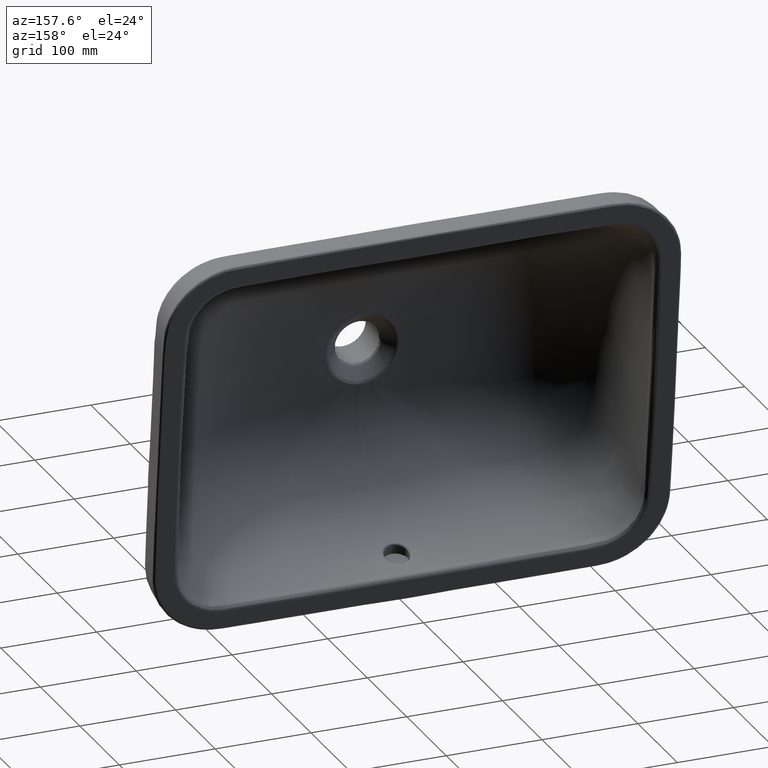
[diagram: clean part render]
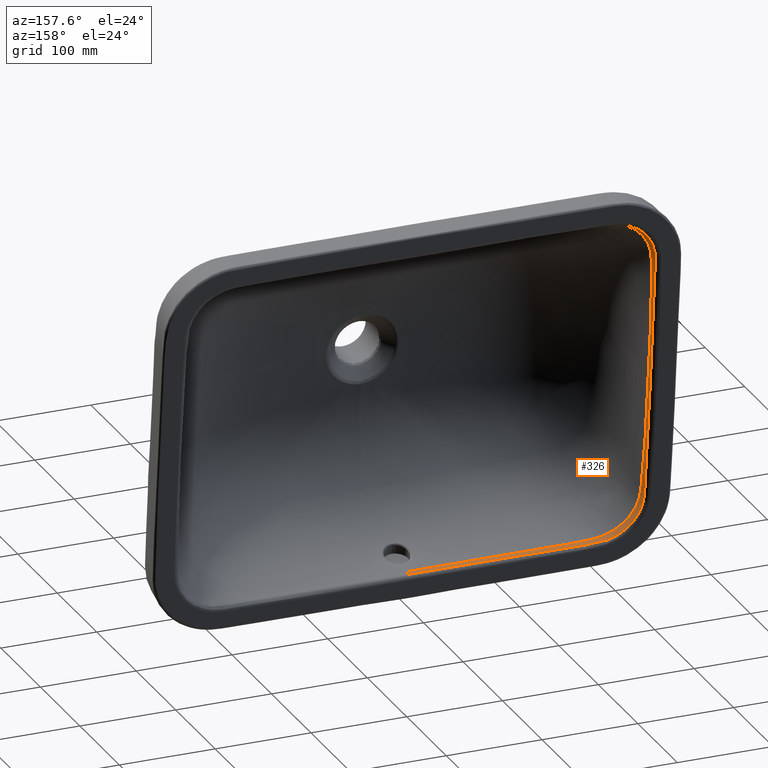
[diagram: same view with one face highlighted and labeled with its STEP entity id]
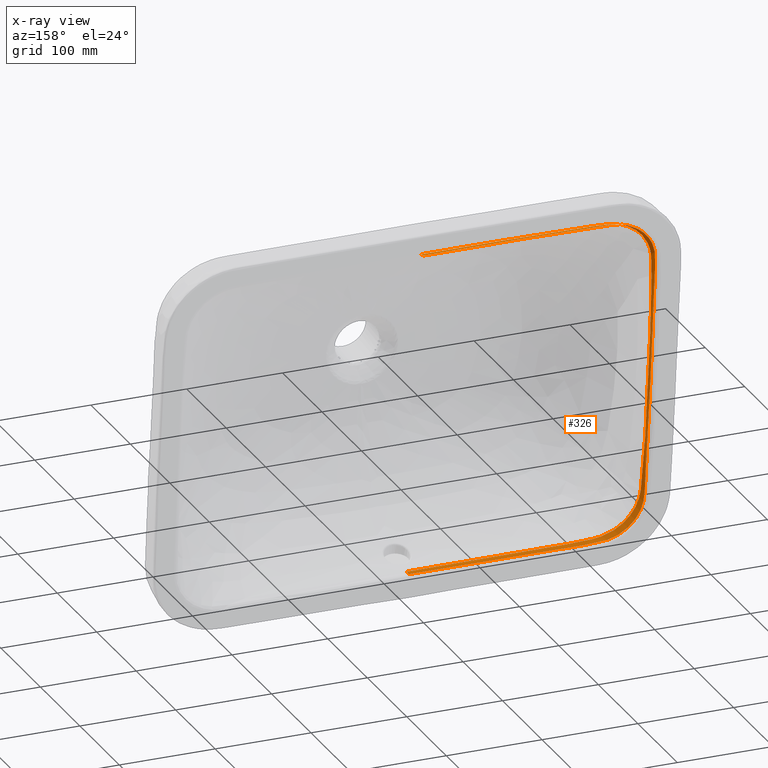
[diagram: x-ray of the same camera — body ghosted, the highlighted face saturated]
A machine part, auxiliary view. The second image highlights one B-rep face of the part: STEP entity #326.
The next image is the same camera in x-ray: the body ghosted, the highlighted face saturated — about 0% of this face is hidden behind the body in this view.
In plain terms, the highlighted face is a freeform B-spline surface patch.
Its self-contained STEP definition (entity closure, byte-faithful):
#326=ADVANCED_FACE('',(#607),#455,.T.);
#455=B_SPLINE_SURFACE_WITH_KNOTS('',3,3,((#45031,#45032,#45033,#45034,#45035,
#45036,#45037),(#45038,#45039,#45040,#45041,#45042,#45043,#45044),(#45045,
#45046,#45047,#45048,#45049,#45050,#45051),(#45052,#45053,#45054,#45055,
#45056,#45057,#45058),(#45059,#45060,#45061,#45062,#45063,#45064,#45065),
(#45066,#45067,#45068,#45069,#45070,#45071,#45072),(#45073,#45074,#45075,
#45076,#45077,#45078,#45079),(#45080,#45081,#45082,#45083,#45084,#45085,
#45086),(#45087,#45088,#45089,#45090,#45091,#45092,#45093),(#45094,#45095,
#45096,#45097,#45098,#45099,#45100),(#45101,#45102,#45103,#45104,#45105,
#45106,#45107),(#45108,#45109,#45110,#45111,#45112,#45113,#45114),(#45115,
#45116,#45117,#45118,#45119,#45120,#45121),(#45122,#45123,#45124,#45125,
#45126,#45127,#45128),(#45129,#45130,#45131,#45132,#45133,#45134,#45135),
(#45136,#45137,#45138,#45139,#45140,#45141,#45142),(#45143,#45144,#45145,
#45146,#45147,#45148,#45149),(#45150,#45151,#45152,#45153,#45154,#45155,
#45156),(#45157,#45158,#45159,#45160,#45161,#45162,#45163),(#45164,#45165,
#45166,#45167,#45168,#45169,#45170),(#45171,#45172,#45173,#45174,#45175,
#45176,#45177),(#45178,#45179,#45180,#45181,#45182,#45183,#45184),(#45185,
#45186,#45187,#45188,#45189,#45190,#45191),(#45192,#45193,#45194,#45195,
#45196,#45197,#45198),(#45199,#45200,#45201,#45202,#45203,#45204,#45205),
(#45206,#45207,#45208,#45209,#45210,#45211,#45212),(#45213,#45214,#45215,
#45216,#45217,#45218,#45219),(#45220,#45221,#45222,#45223,#45224,#45225,
#45226),(#45227,#45228,#45229,#45230,#45231,#45232,#45233),(#45234,#45235,
#45236,#45237,#45238,#45239,#45240),(#45241,#45242,#45243,#45244,#45245,
#45246,#45247),(#45248,#45249,#45250,#45251,#45252,#45253,#45254),(#45255,
#45256,#45257,#45258,#45259,#45260,#45261),(#45262,#45263,#45264,#45265,
#45266,#45267,#45268),(#45269,#45270,#45271,#45272,#45273,#45274,#45275),
(#45276,#45277,#45278,#45279,#45280,#45281,#45282),(#45283,#45284,#45285,
#45286,#45287,#45288,#45289),(#45290,#45291,#45292,#45293,#45294,#45295,
#45296),(#45297,#45298,#45299,#45300,#45301,#45302,#45303),(#45304,#45305,
#45306,#45307,#45308,#45309,#45310),(#45311,#45312,#45313,#45314,#45315,
#45316,#45317),(#45318,#45319,#45320,#45321,#45322,#45323,#45324),(#45325,
#45326,#45327,#45328,#45329,#45330,#45331),(#45332,#45333,#45334,#45335,
#45336,#45337,#45338),(#45339,#45340,#45341,#45342,#45343,#45344,#45345),
(#45346,#45347,#45348,#45349,#45350,#45351,#45352),(#45353,#45354,#45355,
#45356,#45357,#45358,#45359),(#45360,#45361,#45362,#45363,#45364,#45365,
#45366),(#45367,#45368,#45369,#45370,#45371,#45372,#45373),(#45374,#45375,
#45376,#45377,#45378,#45379,#45380),(#45381,#45382,#45383,#45384,#45385,
#45386,#45387),(#45388,#45389,#45390,#45391,#45392,#45393,#45394),(#45395,
#45396,#45397,#45398,#45399,#45400,#45401),(#45402,#45403,#45404,#45405,
#45406,#45407,#45408),(#45409,#45410,#45411,#45412,#45413,#45414,#45415),
(#45416,#45417,#45418,#45419,#45420,#45421,#45422),(#45423,#45424,#45425,
#45426,#45427,#45428,#45429),(#45430,#45431,#45432,#45433,#45434,#45435,
#45436),(#45437,#45438,#45439,#45440,#45441,#45442,#45443)),
 .UNSPECIFIED.,.F.,.F.,.F.,(4,1,1,1,1,1,1,1,1,1,1,1,1,1,1,1,1,1,1,1,1,1,
1,1,1,1,1,1,1,1,1,1,1,1,1,1,1,1,1,1,1,1,1,1,1,1,1,1,1,1,1,1,1,3,4),(4,3,
4),(0.,0.0155315619939548,0.0310633723509959,0.0621269930650784,0.124254234493242,
0.155317855207324,0.186381475921406,0.217445096635488,0.232976906992529,
0.240742812171049,0.24850871734957,0.25627462252809,0.264040527706611,0.279572338063652,
0.295104148420692,0.310635958777733,0.318401863956254,0.326167769134774,
0.333933674313295,0.341699579491815,0.357231389848856,0.372763200205897,
0.403826820919979,0.434890441634061,0.465954062348143,0.481485872705184,
0.489251777883704,0.497017683062225,0.504783588240745,0.512549493419266,
0.528081303776306,0.559144924490388,0.59020854520447,0.621272165918552,
0.652335786632634,0.667867596989675,0.683399407346716,0.698931217703757,
0.714463028060798,0.729994838417839,0.737760743596359,0.74552664877488,
0.74940960136414,0.7532925539534,0.761058459131921,0.776590269488961,0.807653890203043,
0.838717510917125,0.869781131631207,0.885312941988248,0.900844752345289,
0.931908373059371,0.962971993773453,0.994035614487535,1.),(0.,0.00990099009900991,
1.),.UNSPECIFIED.);
#607=FACE_OUTER_BOUND('',#778,.T.);
#778=EDGE_LOOP('',(#1500,#1501,#1502,#1503));
#1500=ORIENTED_EDGE('',*,*,#1868,.F.);
#1501=ORIENTED_EDGE('',*,*,#2225,.T.);
#1502=ORIENTED_EDGE('',*,*,#2226,.T.);
#1503=ORIENTED_EDGE('',*,*,#2227,.T.);
#1620=VERTEX_POINT('',#2741);
#1624=VERTEX_POINT('',#2815);
#1840=VERTEX_POINT('',#44792);
#1841=VERTEX_POINT('',#45026);
#1868=EDGE_CURVE('',#1620,#1624,#2275,.T.);
#2225=EDGE_CURVE('',#1620,#1840,#2622,.T.);
#2226=EDGE_CURVE('',#1840,#1841,#2623,.T.);
#2227=EDGE_CURVE('',#1841,#1624,#2624,.T.);
#2275=B_SPLINE_CURVE_WITH_KNOTS('',3,(#4088,#4089,#4090,#4091,#4092,#4093,
#4094,#4095,#4096,#4097,#4098,#4099,#4100,#4101,#4102,#4103,#4104,#4105,
#4106,#4107,#4108,#4109,#4110,#4111,#4112,#4113,#4114,#4115,#4116,#4117,
#4118,#4119,#4120,#4121,#4122,#4123,#4124,#4125,#4126,#4127,#4128,#4129,
#4130,#4131,#4132,#4133,#4134,#4135,#4136,#4137,#4138,#4139,#4140,#4141,
#4142,#4143,#4144,#4145,#4146,#4147,#4148,#4149),.UNSPECIFIED.,.F.,.F.,
(4,2,2,2,2,2,2,2,2,2,2,2,2,2,2,2,2,2,2,2,2,2,2,2,2,2,2,2,2,2,4),(0.,0.125,
0.187500000000001,0.218750000000001,0.234375000000001,0.242187500000001,
0.250000000000001,0.265625000000001,0.281250000000001,0.312500000000001,
0.328125000000001,0.343750000000001,0.375000000000001,0.437500000000001,
0.468750000000001,0.500000000000001,0.562500000000001,0.625000000000001,
0.656250000000001,0.671875000000001,0.687500000000001,0.718750000000001,
0.734375000000001,0.742187500000001,0.750000000000001,0.757812500000002,
0.765625000000002,0.781250000000001,0.812500000000001,0.875000000000001,
1.),.UNSPECIFIED.);
#2622=B_SPLINE_CURVE_WITH_KNOTS('',3,(#44788,#44789,#44790,#44791),
 .UNSPECIFIED.,.F.,.F.,(4,4),(0.,1.),.UNSPECIFIED.);
#2623=B_SPLINE_CURVE_WITH_KNOTS('',3,(#44793,#44794,#44795,#44796,#44797,
#44798,#44799,#44800,#44801,#44802,#44803,#44804,#44805,#44806,#44807,#44808,
#44809,#44810,#44811,#44812,#44813,#44814,#44815,#44816,#44817,#44818,#44819,
#44820,#44821,#44822,#44823,#44824,#44825,#44826,#44827,#44828,#44829,#44830,
#44831,#44832,#44833,#44834,#44835,#44836,#44837,#44838,#44839,#44840,#44841,
#44842,#44843,#44844,#44845,#44846,#44847,#44848,#44849,#44850,#44851,#44852,
#44853,#44854,#44855,#44856,#44857,#44858,#44859,#44860,#44861,#44862,#44863,
#44864,#44865,#44866,#44867,#44868,#44869,#44870,#44871,#44872,#44873,#44874,
#44875,#44876,#44877,#44878,#44879,#44880,#44881,#44882,#44883,#44884,#44885,
#44886,#44887,#44888,#44889,#44890,#44891,#44892,#44893,#44894,#44895,#44896,
#44897,#44898,#44899,#44900,#44901,#44902,#44903,#44904,#44905,#44906,#44907,
#44908,#44909,#44910,#44911,#44912,#44913,#44914,#44915,#44916,#44917,#44918,
#44919,#44920,#44921,#44922,#44923,#44924,#44925,#44926,#44927,#44928,#44929,
#44930,#44931,#44932,#44933,#44934,#44935,#44936,#44937,#44938,#44939,#44940,
#44941,#44942,#44943,#44944,#44945,#44946,#44947,#44948,#44949,#44950,#44951,
#44952,#44953,#44954,#44955,#44956,#44957,#44958,#44959,#44960,#44961,#44962,
#44963,#44964,#44965,#44966,#44967,#44968,#44969,#44970,#44971,#44972,#44973,
#44974,#44975,#44976,#44977,#44978,#44979,#44980,#44981,#44982,#44983,#44984,
#44985,#44986,#44987,#44988,#44989,#44990,#44991,#44992,#44993,#44994,#44995,
#44996,#44997,#44998,#44999,#45000,#45001,#45002,#45003,#45004,#45005,#45006,
#45007,#45008,#45009,#45010,#45011,#45012,#45013,#45014,#45015,#45016,#45017,
#45018,#45019,#45020,#45021,#45022,#45023,#45024,#45025),.UNSPECIFIED.,
 .F.,.F.,(4,2,2,2,2,1,1,1,2,2,2,2,2,1,1,1,1,1,2,2,2,2,2,2,2,1,1,2,2,2,2,
2,2,2,2,2,2,2,2,2,1,1,2,2,2,2,2,2,2,2,2,2,2,1,1,1,2,2,2,2,2,1,1,2,2,2,2,
2,2,1,2,2,2,2,2,1,2,2,2,2,2,1,1,1,2,2,2,2,2,1,1,2,2,2,2,2,2,2,2,2,2,2,2,
2,2,2,2,1,1,1,2,2,2,2,2,2,1,2,2,2,2,2,1,2,2,2,2,1,1,2,2,4),(0.,0.0624999999999891,
0.0937499999999836,0.109374999999981,0.117187499999979,0.121093749999979,
0.123046874999978,0.124023437499978,0.124511718749978,0.124999999999978,
0.156249999999971,0.171874999999968,0.179687499999966,0.183593749999966,
0.185546874999965,0.186523437499965,0.187011718749965,0.187255859374965,
0.187377929687465,0.187499999999965,0.218749999999962,0.23437499999996,
0.242187499999959,0.246093749999959,0.248046874999959,0.249023437499959,
0.249511718749958,0.249755859374959,0.249999999999959,0.26562499999996,
0.26953124999996,0.273437499999961,0.281249999999962,0.296874999999963,
0.304687499999964,0.308593749999965,0.312499999999965,0.320312499999966,
0.324218749999966,0.326171874999967,0.327148437499967,0.327636718749967,
0.327880859374967,0.328124999999967,0.335937499999969,0.339843749999969,
0.34179687499997,0.34277343749997,0.34326171874997,0.34374999999997,0.359374999999973,
0.367187499999975,0.371093749999976,0.373046874999976,0.374023437499976,
0.374511718749976,0.374755859374977,0.374999999999977,0.406249999999983,
0.421874999999987,0.429687499999988,0.433593749999989,0.43554687499999,
0.43652343749999,0.43749999999999,0.468749999999997,0.484375,0.492187500000002,
0.496093750000003,0.498046875000003,0.499023437500003,0.500000000000004,
0.53125000000001,0.546875000000014,0.554687500000015,0.558593750000016,
0.560546875000017,0.562500000000017,0.593750000000024,0.609375000000028,
0.61718750000003,0.621093750000031,0.623046875000031,0.624023437500031,
0.624511718750031,0.625000000000032,0.640625000000031,0.648437500000031,
0.652343750000031,0.654296875000031,0.655273437500031,0.655761718750031,
0.656250000000031,0.664062500000033,0.667968750000033,0.669921875000034,
0.670898437500034,0.671386718750034,0.671875000000034,0.679687500000034,
0.683593750000035,0.685546875000035,0.687500000000035,0.718750000000039,
0.73437500000004,0.742187500000041,0.746093750000042,0.748046875000042,
0.749023437500042,0.749511718750042,0.749755859375043,0.750000000000043,
0.78125000000004,0.789062500000039,0.790039062500039,0.791015625000039,
0.792968750000038,0.796875000000038,0.812500000000035,0.820312500000033,
0.821289062500033,0.822265625000033,0.824218750000033,0.828125000000032,
0.843750000000029,0.859375000000026,0.867187500000024,0.871093750000024,
0.873046875000023,0.874023437500023,0.875000000000023,1.),.UNSPECIFIED.);
#2624=B_SPLINE_CURVE_WITH_KNOTS('',3,(#45027,#45028,#45029,#45030),
 .UNSPECIFIED.,.F.,.F.,(4,4),(0.,1.),.UNSPECIFIED.);
#2741=CARTESIAN_POINT('',(1.77820747920629E-013,58.0859662182647,0.225017652117687));
#2815=CARTESIAN_POINT('',(1.79591547420632E-013,-294.245062156742,0.225017652117682));
#4088=CARTESIAN_POINT('',(1.75354524806639E-013,58.0859662182647,0.225017652117691));
#4089=CARTESIAN_POINT('',(-22.1644432683728,58.0829865959195,0.225017652117689));
#4090=CARTESIAN_POINT('',(-49.6888967975123,58.1258777044063,0.223726325611701));
#4091=CARTESIAN_POINT('',(-99.0214510549962,58.1013066178581,0.223585601234728));
#4092=CARTESIAN_POINT('',(-116.806750074482,58.0857687021332,0.223802474257948));
#4093=CARTESIAN_POINT('',(-145.49767708691,57.8645191998007,0.22433428379329));
#4094=CARTESIAN_POINT('',(-155.396807442467,57.7428899555295,0.224539583760086));
#4095=CARTESIAN_POINT('',(-170.744585070336,57.3997340585556,0.224795669918567));
#4096=CARTESIAN_POINT('',(-175.943742382463,57.2631832733726,0.224871830229089));
#4097=CARTESIAN_POINT('',(-183.865752689418,56.985956379762,0.224955067848052));
#4098=CARTESIAN_POINT('',(-186.527136572734,56.886121504481,0.224977606270877));
#4099=CARTESIAN_POINT('',(-191.889344066113,56.6147880799374,0.225008898194135));
#4100=CARTESIAN_POINT('',(-194.560611499759,56.4580101507696,0.225017652117678));
#4101=CARTESIAN_POINT('',(-202.775963606058,55.4501264072935,0.225017652117687));
#4102=CARTESIAN_POINT('',(-208.070560444453,53.9961035021957,0.225054915577095));
#4103=CARTESIAN_POINT('',(-217.827931640874,49.6244345186982,0.225173718191573));
#4104=CARTESIAN_POINT('',(-222.291060942797,46.728326130233,0.225255272369529));
#4105=CARTESIAN_POINT('',(-233.845744725352,36.3747033336576,0.225529610769605));
#4106=CARTESIAN_POINT('',(-239.032679908417,27.2391597596175,0.225749684979913));
#4107=CARTESIAN_POINT('',(-241.984330435342,13.0899648357478,0.226034849748722));
#4108=CARTESIAN_POINT('',(-242.229190857298,8.33213473644926,0.226123031488806));
#4109=CARTESIAN_POINT('',(-242.770745766413,-0.958687213556945,0.226275689740588));
#4110=CARTESIAN_POINT('',(-242.985236163534,-5.51426685773238,0.226340179624599));
#4111=CARTESIAN_POINT('',(-243.543337900276,-18.9284366110446,0.226489202575737));
#4112=CARTESIAN_POINT('',(-243.781163621662,-27.5263094568458,0.226527713207115));
#4113=CARTESIAN_POINT('',(-244.275890299911,-52.2685206837737,0.226452274566856));
#4114=CARTESIAN_POINT('',(-244.358080177407,-67.3656527115066,0.226131511252349));
#4115=CARTESIAN_POINT('',(-244.465035625201,-87.9045811136016,0.225589544265807));
#4116=CARTESIAN_POINT('',(-244.481293189346,-94.4002308239726,0.225403261157139));
#4117=CARTESIAN_POINT('',(-244.529186706065,-106.689658915169,0.22511716541031));
#4118=CARTESIAN_POINT('',(-244.57903497194,-112.493100227252,0.225017652117664));
#4119=CARTESIAN_POINT('',(-244.581099938067,-128.792425151895,0.22501765211772));
#4120=CARTESIAN_POINT('',(-244.529770267184,-141.064184137365,0.225407665354512));
#4121=CARTESIAN_POINT('',(-244.430274719438,-168.423167059001,0.226128217192601));
#4122=CARTESIAN_POINT('',(-244.39042059337,-183.513981583662,0.226448165637797));
#4123=CARTESIAN_POINT('',(-243.889134874939,-208.245926576044,0.226523494316907));
#4124=CARTESIAN_POINT('',(-243.632559651247,-216.835460994584,0.226485111117194));
#4125=CARTESIAN_POINT('',(-243.019561322114,-230.241990321657,0.226336490212909));
#4126=CARTESIAN_POINT('',(-242.779998016859,-234.799163697549,0.226272171436215));
#4127=CARTESIAN_POINT('',(-242.230189424514,-244.09907434325,0.226119920407007));
#4128=CARTESIAN_POINT('',(-242.015037522001,-248.860946449427,0.226031974896245));
#4129=CARTESIAN_POINT('',(-239.196951783121,-263.024882752726,0.225747582370425));
#4130=CARTESIAN_POINT('',(-234.170285566968,-272.253841001986,0.225528122048544));
#4131=CARTESIAN_POINT('',(-222.782585507212,-282.802759176439,0.225254574787537));
#4132=CARTESIAN_POINT('',(-218.358883567262,-285.769409216313,0.225173259066531));
#4133=CARTESIAN_POINT('',(-211.066961038487,-289.123475632303,0.225084418867528));
#4134=CARTESIAN_POINT('',(-208.529743613105,-290.061438700017,0.225060370234856));
#4135=CARTESIAN_POINT('',(-203.299186205791,-291.541540455941,0.225026987161644));
#4136=CARTESIAN_POINT('',(-200.57504232275,-292.083209741402,0.225017652117628));
#4137=CARTESIAN_POINT('',(-195.15314375411,-292.761968222162,0.225017652117714));
#4138=CARTESIAN_POINT('',(-192.442701319353,-292.918340242386,0.225008893260851));
#4139=CARTESIAN_POINT('',(-187.067638194525,-293.173434015528,0.224977584456667));
#4140=CARTESIAN_POINT('',(-184.399658788081,-293.260861282947,0.224955033956129));
#4141=CARTESIAN_POINT('',(-176.458287812915,-293.502678935038,0.224871751899569));
#4142=CARTESIAN_POINT('',(-171.24634316492,-293.615496073003,0.22479555118102));
#4143=CARTESIAN_POINT('',(-155.85993213216,-293.90565901341,0.224539331298678));
#4144=CARTESIAN_POINT('',(-145.935286213654,-294.017771684657,0.224333928317324));
#4145=CARTESIAN_POINT('',(-117.169427695032,-294.259704089661,0.223801864412912));
#4146=CARTESIAN_POINT('',(-99.3337875047315,-294.282214493358,0.223584888929627));
#4147=CARTESIAN_POINT('',(-49.8558164037673,-294.294743088123,0.223725543895533));
#4148=CARTESIAN_POINT('',(-22.2416039583019,-294.245068179872,0.225017652117644));
#4149=CARTESIAN_POINT('',(2.87121122144521E-013,-294.245062156742,0.225017652117703));
#44788=CARTESIAN_POINT('',(1.7531897692661E-013,58.0859662182647,0.225017652117682));
#44789=CARTESIAN_POINT('',(2.67358545442097E-006,58.311130253061,1.593758445416));
#44790=CARTESIAN_POINT('',(5.56454324182418E-006,58.5257412189763,2.96445389949261));
#44791=CARTESIAN_POINT('',(8.68233119600239E-006,58.7301834006853,4.33680663543269));
#44792=CARTESIAN_POINT('',(2.3190543035004E-015,58.7302715060645,4.33679351059625));
#44793=CARTESIAN_POINT('',(-5.61388518003812E-012,58.7301834001,4.33680663553828));
#44794=CARTESIAN_POINT('',(-12.5780997715322,58.7294664849681,4.33783861461971));
#44795=CARTESIAN_POINT('',(-27.1693967170776,58.7552172443759,4.35859679571018));
#44796=CARTESIAN_POINT('',(-52.0861008118151,58.8330506698709,4.41982368903098));
#44797=CARTESIAN_POINT('',(-60.8966983557453,58.8655846146573,4.44524419639386));
#44798=CARTESIAN_POINT('',(-74.8718546049584,58.9165092361294,4.49090660698956));
#44799=CARTESIAN_POINT('',(-79.656786208687,58.9337554008962,4.50738225673015));
#44800=CARTESIAN_POINT('',(-87.0242476953118,58.9583673205033,4.53397547264561));
#44801=CARTESIAN_POINT('',(-89.5117457621973,58.9663568179129,4.54315313569516));
#44802=CARTESIAN_POINT('',(-93.2905418600071,58.9777641875071,4.55738889653791));
#44803=CARTESIAN_POINT('',(-95.1918271796985,58.9833231391703,4.56462409025882));
#44804=CARTESIAN_POINT('',(-97.4308034773024,58.9894938902384,4.57327027707115));
#44805=CARTESIAN_POINT('',(-98.5554950869084,58.992492484721,4.57764462832627));
#44806=CARTESIAN_POINT('',(-99.0386209049617,58.993758121133,4.57953033147873));
#44807=CARTESIAN_POINT('',(-99.3609526011936,58.994597451929,4.58078990687676));
#44808=CARTESIAN_POINT('',(-99.490807981024,58.9949340493118,4.58129779191411));
#44809=CARTESIAN_POINT('',(-112.025931123231,59.0271768629257,4.63039555191837));
#44810=CARTESIAN_POINT('',(-122.352453856189,59.0365911496374,4.6732647674844));
#44811=CARTESIAN_POINT('',(-134.814062147563,59.0250346201209,4.72907067149777));
#44812=CARTESIAN_POINT('',(-138.463223276866,59.0167446418667,4.74625983761562));
#44813=CARTESIAN_POINT('',(-143.179439592607,59.0008896145441,4.76991105471792));
#44814=CARTESIAN_POINT('',(-144.625259236023,58.995066563613,4.77743948218273));
#44815=CARTESIAN_POINT('',(-146.604565940843,58.9860954055134,4.78819829191344));
#44816=CARTESIAN_POINT('',(-147.546863730092,58.9815514375084,4.79344424573677));
#44817=CARTESIAN_POINT('',(-148.563330524368,58.9762753526493,4.79933086046956));
#44818=CARTESIAN_POINT('',(-149.050842801421,58.9736592756849,4.80221574000883));
#44819=CARTESIAN_POINT('',(-149.289418541536,58.9723586593891,4.80364357144702));
#44820=CARTESIAN_POINT('',(-149.407411297469,58.9717104464889,4.80435383492392));
#44821=CARTESIAN_POINT('',(-149.457702095441,58.9714331156133,4.80465745091712));
#44822=CARTESIAN_POINT('',(-149.491167621468,58.9712483370148,4.80485968765751));
#44823=CARTESIAN_POINT('',(-149.475393459885,58.9713357662454,4.80476407441244));
#44824=CARTESIAN_POINT('',(-162.10621835761,58.9014206220108,4.88124447361432));
#44825=CARTESIAN_POINT('',(-172.550412705305,58.7785012736082,4.97464838466029));
#44826=CARTESIAN_POINT('',(-185.008815729263,58.589377562659,5.14039416586221));
#44827=CARTESIAN_POINT('',(-188.626960110398,58.5285335289062,5.19992017042422));
#44828=CARTESIAN_POINT('',(-193.251209390851,58.3974946058451,5.29562968721679));
#44829=CARTESIAN_POINT('',(-194.659078281075,58.3473561703688,5.32860309638706));
#44830=CARTESIAN_POINT('',(-196.568057655053,58.2503021040996,5.37967029802223));
#44831=CARTESIAN_POINT('',(-197.170569836335,58.2143471242313,5.39696055378747));
#44832=CARTESIAN_POINT('',(-198.023520773607,58.1553784296687,5.42329799763554));
#44833=CARTESIAN_POINT('',(-198.299370332176,58.1348984487271,5.43214415601727));
#44834=CARTESIAN_POINT('',(-198.70044812142,58.1031091884661,5.44551394738662));
#44835=CARTESIAN_POINT('',(-198.897813030192,58.086948323481,5.45222398155579));
#44836=CARTESIAN_POINT('',(-199.122520079702,58.0676748887067,5.46009635581308));
#44837=CARTESIAN_POINT('',(-199.217633731598,58.0593306435321,5.46347966024979));
#44838=CARTESIAN_POINT('',(-199.280778568973,58.0537497371304,5.46573729214893));
#44839=CARTESIAN_POINT('',(-199.266164424104,58.0550811254428,5.46520358113535));
#44840=CARTESIAN_POINT('',(-204.294733891528,57.6040404373171,5.64684519572549));
#44841=CARTESIAN_POINT('',(-208.550716776955,56.5818538314067,5.78149772318628));
#44842=CARTESIAN_POINT('',(-212.943900067792,55.0483534237161,5.89471140720889));
#44843=CARTESIAN_POINT('',(-213.777424907012,54.730530385702,5.91459889522331));
#44844=CARTESIAN_POINT('',(-215.355937803478,54.0839513989714,5.94886623992991));
#44845=CARTESIAN_POINT('',(-216.365211810289,53.6411187909961,5.96880721137542));
#44846=CARTESIAN_POINT('',(-219.184816043191,52.2848170664679,6.02057220531707));
#44847=CARTESIAN_POINT('',(-221.002880485493,51.2656410891756,6.04829303549747));
#44848=CARTESIAN_POINT('',(-226.226189679065,47.8764106470636,6.11110669140224));
#44849=CARTESIAN_POINT('',(-229.507010940362,45.0797703713367,6.12675492958743));
#44850=CARTESIAN_POINT('',(-233.667376095148,40.4174755320028,6.10878115214492));
#44851=CARTESIAN_POINT('',(-234.936904919609,38.7823307928753,6.09593823768851));
#44852=CARTESIAN_POINT('',(-236.657562791853,36.236052086327,6.06640583899093));
#44853=CARTESIAN_POINT('',(-237.200530167145,35.3716777247028,6.05485036348935));
#44854=CARTESIAN_POINT('',(-238.224237341129,33.6160974559347,6.02831823948935));
#44855=CARTESIAN_POINT('',(-238.683481286843,32.7680828849855,6.01414015104286));
#44856=CARTESIAN_POINT('',(-240.095488411951,29.9309647588238,5.96168496274481));
#44857=CARTESIAN_POINT('',(-240.897045645699,27.9908316875755,5.91759772820873));
#44858=CARTESIAN_POINT('',(-241.875830949777,25.0346682201049,5.83780303644313));
#44859=CARTESIAN_POINT('',(-242.164670983599,24.0414521027852,5.80892748902618));
#44860=CARTESIAN_POINT('',(-242.54329508053,22.5450426207431,5.7621995736305));
#44861=CARTESIAN_POINT('',(-242.660405153476,22.0451440380978,5.74605450208455));
#44862=CARTESIAN_POINT('',(-242.822630169572,21.2942800504391,5.720983411306));
#44863=CARTESIAN_POINT('',(-242.900382663949,20.9185937078155,5.70823449498341));
#44864=CARTESIAN_POINT('',(-242.985259217194,20.4799816381194,5.69298739575877));
#44865=CARTESIAN_POINT('',(-243.020389453622,20.2919524382791,5.68637292196418));
#44866=CARTESIAN_POINT('',(-243.043533389419,20.1665895124587,5.68194549480788));
#44867=CARTESIAN_POINT('',(-243.048343894691,20.1406613693091,5.68103131387448));
#44868=CARTESIAN_POINT('',(-243.639683036591,16.8588380370229,5.56421418638024));
#44869=CARTESIAN_POINT('',(-243.803985021379,14.20175474675,5.47390951721735));
#44870=CARTESIAN_POINT('',(-243.963191240504,11.0886949897953,5.37284499005684));
#44871=CARTESIAN_POINT('',(-243.994951918218,10.1948654819085,5.34488932860751));
#44872=CARTESIAN_POINT('',(-244.03166197334,9.07207277287014,5.31154978325205));
#44873=CARTESIAN_POINT('',(-244.041852090325,8.73410569968717,5.30186894764044));
#44874=CARTESIAN_POINT('',(-244.055179583324,8.28168633637411,5.28949579545305));
#44875=CARTESIAN_POINT('',(-244.059287956996,8.1399674971088,5.28572942949243));
#44876=CARTESIAN_POINT('',(-244.065030139744,7.94102470854285,5.28061686626793));
#44877=CARTESIAN_POINT('',(-244.066873799645,7.87698298702685,5.2790021762196));
#44878=CARTESIAN_POINT('',(-244.070430174057,7.75344491811375,5.27595178547926));
#44879=CARTESIAN_POINT('',(-244.070915903155,7.73647159518789,5.27551645617932));
#44880=CARTESIAN_POINT('',(-244.165894100827,4.44483239074543,5.19807931180773));
#44881=CARTESIAN_POINT('',(-244.263201627399,0.768082242652139,5.12589666004439));
#44882=CARTESIAN_POINT('',(-244.413831156873,-5.47747486875017,5.02197235995719));
#44883=CARTESIAN_POINT('',(-244.465110058919,-7.6814011449205,4.98805569089945));
#44884=CARTESIAN_POINT('',(-244.541555812986,-11.1706680012462,4.93826443246195));
#44885=CARTESIAN_POINT('',(-244.566913585215,-12.3643003307684,4.92184795616131));
#44886=CARTESIAN_POINT('',(-244.604331774125,-14.2005346137972,4.89749359356682));
#44887=CARTESIAN_POINT('',(-244.622885454341,-15.1300980288762,4.88538399872863));
#44888=CARTESIAN_POINT('',(-244.644156281482,-16.2346112822393,4.87137427484669));
#44889=CARTESIAN_POINT('',(-244.654684358879,-16.7918723530273,4.86439892838494));
#44890=CARTESIAN_POINT('',(-244.659171923036,-17.0317707735253,4.86141581689574));
#44891=CARTESIAN_POINT('',(-244.662158029954,-17.1919413157427,4.8594284807195));
#44892=CARTESIAN_POINT('',(-244.664201024099,-17.3019958769794,4.85806676603456));
#44893=CARTESIAN_POINT('',(-244.784767808721,-23.8130601029157,4.77763341076843));
#44894=CARTESIAN_POINT('',(-244.887362242298,-31.2090606104871,4.7048459024935));
#44895=CARTESIAN_POINT('',(-244.993713879609,-43.7067062018774,4.60604109146528));
#44896=CARTESIAN_POINT('',(-245.021686432184,-48.1065494729769,4.57483449778639));
#44897=CARTESIAN_POINT('',(-245.053363432311,-55.0572798723986,4.53058642807476));
#44898=CARTESIAN_POINT('',(-245.062234878491,-57.4326829945708,4.51626395676913));
#44899=CARTESIAN_POINT('',(-245.073457386441,-61.0835225943255,4.49541592813512));
#44900=CARTESIAN_POINT('',(-245.078551493649,-62.930876055501,4.48515082453487));
#44901=CARTESIAN_POINT('',(-245.083732575402,-65.1245038730539,4.4734518506209));
#44902=CARTESIAN_POINT('',(-245.085808166483,-66.0728545699547,4.46849723191367));
#44903=CARTESIAN_POINT('',(-245.087161840317,-66.7069160027169,4.46520730024444));
#44904=CARTESIAN_POINT('',(-245.087718368269,-66.9730498282388,4.46383406050561));
#44905=CARTESIAN_POINT('',(-245.112572668274,-79.2051282893547,4.40123379151048));
#44906=CARTESIAN_POINT('',(-245.109916924224,-89.3003218897822,4.35494353080033));
#44907=CARTESIAN_POINT('',(-245.110822193168,-101.798712360925,4.30741995000524));
#44908=CARTESIAN_POINT('',(-245.117538469007,-105.523996809704,4.29523227728066));
#44909=CARTESIAN_POINT('',(-245.129892524869,-110.451084331814,4.28247262683758));
#44910=CARTESIAN_POINT('',(-245.1326537296,-111.983326769323,4.27913970679928));
#44911=CARTESIAN_POINT('',(-245.134038204966,-114.11653656746,4.27552562079942));
#44912=CARTESIAN_POINT('',(-245.134186272397,-114.800078457865,4.27455180414707));
#44913=CARTESIAN_POINT('',(-245.134214878118,-115.784096939163,4.27343796418375));
#44914=CARTESIAN_POINT('',(-245.134179249969,-116.26578262345,4.27296776499867));
#44915=CARTESIAN_POINT('',(-245.134107615527,-116.731982804436,4.27262774891801));
#44916=CARTESIAN_POINT('',(-245.134055369331,-117.039341698981,4.27243001210743));
#44917=CARTESIAN_POINT('',(-245.134034841675,-117.150728049987,4.27236449684077));
#44918=CARTESIAN_POINT('',(-245.132823708018,-123.447481238439,4.26943392541173));
#44919=CARTESIAN_POINT('',(-245.113957573434,-130.665162092072,4.27927112990059));
#44920=CARTESIAN_POINT('',(-245.115747403646,-143.163039321456,4.3128411629137));
#44921=CARTESIAN_POINT('',(-245.117341495063,-147.607592240299,4.32716694529652));
#44922=CARTESIAN_POINT('',(-245.117228239409,-154.693030956438,4.35333786949469));
#44923=CARTESIAN_POINT('',(-245.116877556473,-157.124612079141,4.36284193393133));
#44924=CARTESIAN_POINT('',(-245.115582504374,-160.876736399885,4.37826653790854));
#44925=CARTESIAN_POINT('',(-245.114741688143,-162.778986875322,4.38627097339332));
#44926=CARTESIAN_POINT('',(-245.113544814498,-164.720540080459,4.39471327607001));
#44927=CARTESIAN_POINT('',(-245.112659691325,-166.023645178048,4.4004387496642));
#44928=CARTESIAN_POINT('',(-245.11213242603,-166.730437698117,4.40357817384323));
#44929=CARTESIAN_POINT('',(-245.1037557604,-177.090547094652,4.45002117730015));
#44930=CARTESIAN_POINT('',(-245.084785471233,-186.133549678031,4.50513352264663));
#44931=CARTESIAN_POINT('',(-244.993624281987,-198.632771384222,4.60515354291667));
#44932=CARTESIAN_POINT('',(-244.953457721402,-202.62165337681,4.64138453286661));
#44933=CARTESIAN_POINT('',(-244.877861997632,-208.338416932344,4.70009066219812));
#44934=CARTESIAN_POINT('',(-244.850140518509,-210.19958131465,4.7203859257479));
#44935=CARTESIAN_POINT('',(-244.804964446316,-212.924683211699,4.75192108096722));
#44936=CARTESIAN_POINT('',(-244.781480508414,-214.270573218173,4.76796171881449));
#44937=CARTESIAN_POINT('',(-244.752581492417,-215.811621720634,4.78715413401753));
#44938=CARTESIAN_POINT('',(-244.737766749626,-216.57485701272,4.79686998275639));
#44939=CARTESIAN_POINT('',(-244.731340418231,-216.900395953175,4.8010595613111));
#44940=CARTESIAN_POINT('',(-244.727039179055,-217.117074827502,4.80385831286649));
#44941=CARTESIAN_POINT('',(-244.725657853882,-217.186489155804,4.80475634635441));
#44942=CARTESIAN_POINT('',(-244.628460413112,-222.029038464954,4.86776216305207));
#44943=CARTESIAN_POINT('',(-244.517111928022,-226.455756995293,4.93419256899908));
#44944=CARTESIAN_POINT('',(-244.352559873562,-232.699320894398,5.04187092749413));
#44945=CARTESIAN_POINT('',(-244.29800570542,-234.714368337368,5.07910238577032));
#44946=CARTESIAN_POINT('',(-244.219166922376,-237.638178847063,5.13696055180018));
#44947=CARTESIAN_POINT('',(-244.193379775371,-238.596319495094,5.15658176339928));
#44948=CARTESIAN_POINT('',(-244.155701825226,-240.008869423779,5.18651662645208));
#44949=CARTESIAN_POINT('',(-244.137112995142,-240.708978901049,5.2016098187795));
#44950=CARTESIAN_POINT('',(-244.115915889908,-241.514988659796,5.21943868627071));
#44951=CARTESIAN_POINT('',(-244.106941617667,-241.858110813555,5.22712680921512));
#44952=CARTESIAN_POINT('',(-244.100983830772,-242.086345489502,5.23226270957621));
#44953=CARTESIAN_POINT('',(-244.097199142611,-242.231681825992,5.23555029741948));
#44954=CARTESIAN_POINT('',(-244.060900344289,-243.627861542954,5.26723898509962));
#44955=CARTESIAN_POINT('',(-244.029939072936,-245.330826704803,5.31514786739433));
#44956=CARTESIAN_POINT('',(-243.900972449436,-248.457583876634,5.414163618103));
#44957=CARTESIAN_POINT('',(-243.842684644748,-249.594982687573,5.4516944569079));
#44958=CARTESIAN_POINT('',(-243.698925653334,-251.438962538189,5.51478420684165));
#44959=CARTESIAN_POINT('',(-243.641414396758,-252.076571458037,5.53694638601476));
#44960=CARTESIAN_POINT('',(-243.534407874678,-253.06647154214,5.5718888193924));
#44961=CARTESIAN_POINT('',(-243.495265404494,-253.402016775536,5.58381949224438));
#44962=CARTESIAN_POINT('',(-243.430381998184,-253.913560446572,5.60214039930367));
#44963=CARTESIAN_POINT('',(-243.407724700042,-254.085445791746,5.60831818468296));
#44964=CARTESIAN_POINT('',(-243.360176158885,-254.431932137547,5.62081540645396));
#44965=CARTESIAN_POINT('',(-243.327683331499,-254.657775102036,5.62899593513377));
#44966=CARTESIAN_POINT('',(-243.013194387789,-256.777728180231,5.70599197837788));
#44967=CARTESIAN_POINT('',(-242.574665213928,-258.788530364824,5.76943312525147));
#44968=CARTESIAN_POINT('',(-241.690791509522,-261.794587514987,5.8510460518451));
#44969=CARTESIAN_POINT('',(-241.358608257447,-262.794835156718,5.87599221406906));
#44970=CARTESIAN_POINT('',(-240.80294020664,-264.287690531253,5.91002283377687));
#44971=CARTESIAN_POINT('',(-240.608153883054,-264.784051693217,5.92080160221183));
#44972=CARTESIAN_POINT('',(-240.199301222377,-265.77339363344,5.94122935201439));
#44973=CARTESIAN_POINT('',(-239.970476826327,-266.298745461649,5.95147742474062));
#44974=CARTESIAN_POINT('',(-236.417191919339,-274.092697307199,6.09572023321222));
#44975=CARTESIAN_POINT('',(-231.032780210237,-280.602007818739,6.12009902724192));
#44976=CARTESIAN_POINT('',(-220.818591276535,-287.798309427318,5.98898389331852));
#44977=CARTESIAN_POINT('',(-217.063805750782,-289.770628556444,5.91733081462069));
#44978=CARTESIAN_POINT('',(-211.086961000043,-291.989481269957,5.76785220841079));
#44979=CARTESIAN_POINT('',(-209.03760624189,-292.605551213886,5.71102621376257));
#44980=CARTESIAN_POINT('',(-205.90064385824,-293.337069054889,5.61527853321935));
#44981=CARTESIAN_POINT('',(-204.844471538646,-293.54865538085,5.58161119735302));
#44982=CARTESIAN_POINT('',(-203.24764176147,-293.818310152474,5.52848196580678));
#44983=CARTESIAN_POINT('',(-202.446089054502,-293.941227619582,5.50126029380294));
#44984=CARTESIAN_POINT('',(-201.506176604768,-294.064006264486,5.46835160323112));
#44985=CARTESIAN_POINT('',(-201.035119697726,-294.120267799772,5.45160971217286));
#44986=CARTESIAN_POINT('',(-200.833012097442,-294.143284160824,5.44437299612835));
#44987=CARTESIAN_POINT('',(-200.698224549819,-294.158385253556,5.43953482513617));
#44988=CARTESIAN_POINT('',(-200.599853953982,-294.16916798951,5.43599238428895));
#44989=CARTESIAN_POINT('',(-195.892627493811,-294.679209309528,5.26619345752974));
#44990=CARTESIAN_POINT('',(-188.381105477624,-294.778181049082,5.12811222834309));
#44991=CARTESIAN_POINT('',(-175.516312505803,-294.935090089825,4.99346637102533));
#44992=CARTESIAN_POINT('',(-172.768673112756,-294.965368189086,4.96843637384803));
#44993=CARTESIAN_POINT('',(-169.481037083647,-294.998556956773,4.94241715858102));
#44994=CARTESIAN_POINT('',(-169.113014384322,-295.002225756716,4.93955585244709));
#44995=CARTESIAN_POINT('',(-168.37150923016,-295.009520805524,4.93389268965385));
#44996=CARTESIAN_POINT('',(-167.924867409792,-295.013841049058,4.93055867606372));
#44997=CARTESIAN_POINT('',(-167.361912146258,-295.01924678953,4.92639414908116));
#44998=CARTESIAN_POINT('',(-166.207469354053,-295.030180385379,4.91799197018391));
#44999=CARTESIAN_POINT('',(-164.967433349689,-295.041396734136,4.90937040337676));
#45000=CARTESIAN_POINT('',(-160.6437914365,-295.079023794638,4.88014435133927));
#45001=CARTESIAN_POINT('',(-156.576254981931,-295.109893299854,4.85520291004303));
#45002=CARTESIAN_POINT('',(-149.562572501881,-295.14953982361,4.81545689808944));
#45003=CARTESIAN_POINT('',(-147.072624145112,-295.161646640727,4.80181937010485));
#45004=CARTESIAN_POINT('',(-144.100430263049,-295.173353355202,4.78604142535484));
#45005=CARTESIAN_POINT('',(-143.767811454251,-295.1746276204,4.78428226968084));
#45006=CARTESIAN_POINT('',(-143.097823944383,-295.177121063682,4.78075186482883));
#45007=CARTESIAN_POINT('',(-142.900862367839,-295.177830120593,4.77971822344941));
#45008=CARTESIAN_POINT('',(-142.158584260823,-295.180468221067,4.77582869284928));
#45009=CARTESIAN_POINT('',(-140.670918352034,-295.185519937415,4.76807459959521));
#45010=CARTESIAN_POINT('',(-139.173923194289,-295.189905412404,4.76039550511997));
#45011=CARTESIAN_POINT('',(-134.163206920474,-295.203078654896,4.73496562596391));
#45012=CARTESIAN_POINT('',(-130.088290246352,-295.208977513556,4.71515637693512));
#45013=CARTESIAN_POINT('',(-121.805749190655,-295.212652567975,4.67661957518574));
#45014=CARTESIAN_POINT('',(-117.598124699835,-295.210430269059,4.6578920184774));
#45015=CARTESIAN_POINT('',(-111.187142151544,-295.202145533503,4.63062270230648));
#45016=CARTESIAN_POINT('',(-109.033556993881,-295.198561998477,4.62166994900265));
#45017=CARTESIAN_POINT('',(-105.77829087774,-295.192126935654,4.60844783536048));
#45018=CARTESIAN_POINT('',(-104.144435724181,-295.188644796612,4.60188853414849));
#45019=CARTESIAN_POINT('',(-102.227382286344,-295.184160697335,4.59432693028845));
#45020=CARTESIAN_POINT('',(-101.403454533147,-295.182153272453,4.59110576223099));
#45021=CARTESIAN_POINT('',(-100.853650820873,-295.180796477897,4.58896265870137));
#45022=CARTESIAN_POINT('',(-100.62000216822,-295.180213825229,4.58805413172454));
#45023=CARTESIAN_POINT('',(-59.7356609853993,-295.076801747306,4.42963417591187));
#45024=CARTESIAN_POINT('',(-26.319417836352,-294.904077705597,4.35142909022539));
#45025=CARTESIAN_POINT('',(3.72818436460124E-011,-294.904076207873,4.35143364014649));
#45026=CARTESIAN_POINT('',(2.19489092094269E-015,-294.904076207873,4.35143364014643));
#45027=CARTESIAN_POINT('',(1.46554531821049E-014,-294.904076207873,4.35143364014641));
#45028=CARTESIAN_POINT('',(8.35387234347393E-007,-294.694751915823,2.97413916898682));
#45029=CARTESIAN_POINT('',(8.1820249054451E-007,-294.475211338599,1.59857489154153));
#45030=CARTESIAN_POINT('',(1.86991685786032E-013,-294.245062156742,0.22501765211768));
#45031=CARTESIAN_POINT('',(1.30324707025809E-005,59.000198006171,6.19154220441181));
#45032=CARTESIAN_POINT('',(1.29836522388311E-005,58.9973185407027,6.1713250191942));
#45033=CARTESIAN_POINT('',(1.29348337750812E-005,58.9944390752345,6.15110783397658));
#45034=CARTESIAN_POINT('',(1.28860153113313E-005,58.9915596097662,6.13089064875896));
#45035=CARTESIAN_POINT('',(8.00416893634512E-006,58.7036130629402,4.10917212699717));
#45036=CARTESIAN_POINT('',(3.62252886685978E-006,58.394004764096,2.09076253395021));
#45037=CARTESIAN_POINT('',(-2.89051063859439E-007,58.0615098106942,0.0766097611469228));
#45038=CARTESIAN_POINT('',(-4.16169787321384,59.000046970633,6.19154094494631));
#45039=CARTESIAN_POINT('',(-4.16152566352824,58.9971659663411,6.17132374615093));
#45040=CARTESIAN_POINT('',(-4.16135345384264,58.9942849620492,6.15110654735555));
#45041=CARTESIAN_POINT('',(-4.16118124415704,58.9914039577573,6.13088934856017));
#45042=CARTESIAN_POINT('',(-4.1439602755969,58.7033035285682,4.1091694690224));
#45043=CARTESIAN_POINT('',(-4.12698279430823,58.3935601237469,2.09075784079687));
#45044=CARTESIAN_POINT('',(-4.11019943233243,58.0609472600735,0.0766027773369242));
#45045=CARTESIAN_POINT('',(-12.4851788670793,59.0060829456547,6.19161029852352));
#45046=CARTESIAN_POINT('',(-12.4846620934142,59.0031816122671,6.17139363974769));
#45047=CARTESIAN_POINT('',(-12.4841453197491,59.0002802788795,6.15117698097185));
#45048=CARTESIAN_POINT('',(-12.483628546084,58.9973789454919,6.13096032219602));
#45049=CARTESIAN_POINT('',(-12.4319511795747,58.707245606732,4.10929444461297));
#45050=CARTESIAN_POINT('',(-12.381005876907,58.3956100469896,2.09092790345336));
#45051=CARTESIAN_POINT('',(-12.3306444164,58.0612386004157,0.0768088098883771));
#45052=CARTESIAN_POINT('',(-29.1322618036204,59.0391035012106,6.19201746665127));
#45053=CARTESIAN_POINT('',(-29.1310560009803,59.0361033451021,6.17180400691033));
#45054=CARTESIAN_POINT('',(-29.1298501983402,59.0331031889937,6.15159054716939));
#45055=CARTESIAN_POINT('',(-29.1286443957001,59.0301030328852,6.13137708742846));
#45056=CARTESIAN_POINT('',(-29.0080641316916,58.7300874220387,4.11003111333498));
#45057=CARTESIAN_POINT('',(-28.8891887711895,58.4091334451008,2.09193850951259));
#45058=CARTESIAN_POINT('',(-28.7716727508768,58.0659884397405,0.0780430210239524));
#45059=CARTESIAN_POINT('',(-58.2651357365363,59.1403627721867,6.19338846794979));
#45060=CARTESIAN_POINT('',(-58.2627251220995,59.1370657778679,6.17318580370818));
#45061=CARTESIAN_POINT('',(-58.2603145076628,59.1337687835492,6.15298313946657));
#45062=CARTESIAN_POINT('',(-58.2579038932261,59.1304717892304,6.13278047522496));
#45063=CARTESIAN_POINT('',(-58.0168424495512,58.8007723573557,4.11251405106388));
#45064=CARTESIAN_POINT('',(-57.7791595605046,58.4515118700015,2.09535152472196));
#45065=CARTESIAN_POINT('',(-57.5441668157466,58.0814235767352,0.0822192937977925));
#45066=CARTESIAN_POINT('',(-91.5616814443997,59.3027605483113,6.19624524828622));
#45067=CARTESIAN_POINT('',(-91.5578995020709,59.2989723874655,6.17606510398301));
#45068=CARTESIAN_POINT('',(-91.5541175597421,59.2951842266197,6.15588495967981));
#45069=CARTESIAN_POINT('',(-91.5503356174132,59.2913960657739,6.1357048153766));
#45070=CARTESIAN_POINT('',(-91.1721413845314,58.912579981193,4.11769038505584));
#45071=CARTESIAN_POINT('',(-90.7990924362754,58.5150748566226,2.10247399200378));
#45072=CARTESIAN_POINT('',(-90.4301213213725,58.097783544408,0.0909430818736066));
#45073=CARTESIAN_POINT('',(-124.86126220994,59.379098227847,6.19996208554723));
#45074=CARTESIAN_POINT('',(-124.856115062183,59.3747219647938,6.17981125215268));
#45075=CARTESIAN_POINT('',(-124.850967914426,59.3703457017406,6.15966041875814));
#45076=CARTESIAN_POINT('',(-124.845820766669,59.3659694386874,6.13950958536359));
#45077=CARTESIAN_POINT('',(-124.331105990965,58.9283431333677,4.1244262459088));
#45078=CARTESIAN_POINT('',(-123.82313278236,58.4737101245023,2.1117454811106));
#45079=CARTESIAN_POINT('',(-123.320466414156,58.0010496322466,0.102302790181406));
#45080=CARTESIAN_POINT('',(-149.837935806827,59.3445589029245,6.20307209501467));
#45081=CARTESIAN_POINT('',(-149.831771437735,59.3397502442727,6.18294579111445));
#45082=CARTESIAN_POINT('',(-149.825607068643,59.3349415856209,6.16281948721423));
#45083=CARTESIAN_POINT('',(-149.819442699552,59.3301329269691,6.14269318331401));
#45084=CARTESIAN_POINT('',(-149.203005790377,58.8492670617893,4.13006279329221));
#45085=CARTESIAN_POINT('',(-148.594350334007,58.3521200173142,2.11950497217557));
#45086=CARTESIAN_POINT('',(-147.991778316196,57.8377725107387,0.111811289822037));
#45087=CARTESIAN_POINT('',(-170.652404269405,59.1551866423586,6.2058427326785));
#45088=CARTESIAN_POINT('',(-170.645388765623,59.1497221050981,6.18573828443982));
#45089=CARTESIAN_POINT('',(-170.63837326184,59.1442575678375,6.16563383620113));
#45090=CARTESIAN_POINT('',(-170.631357758057,59.1387930305769,6.14552938796245));
#45091=CARTESIAN_POINT('',(-169.929807379781,58.5923393045205,4.13508456409395));
#45092=CARTESIAN_POINT('',(-169.236770314153,58.0316610273488,2.12641895389136));
#45093=CARTESIAN_POINT('',(-168.550335636401,57.4558051630658,0.120284651759484));
#45094=CARTESIAN_POINT('',(-185.221899163034,58.9367390311983,6.20782904625701));
#45095=CARTESIAN_POINT('',(-185.214274620548,58.9304820114714,6.18774026809057));
#45096=CARTESIAN_POINT('',(-185.206650078062,58.9242249917445,6.16765148992413));
#45097=CARTESIAN_POINT('',(-185.199025535576,58.9179679720176,6.14756271175768));
#45098=CARTESIAN_POINT('',(-184.436571286972,58.2922659993268,4.13868489511336));
#45099=CARTESIAN_POINT('',(-183.682880640365,57.6545779663743,2.13137629224709));
#45100=CARTESIAN_POINT('',(-182.935907237815,57.003917257017,0.12636052781094));
#45101=CARTESIAN_POINT('',(-193.545754265232,58.7360601201746,6.20897074646287));
#45102=CARTESIAN_POINT('',(-193.537777585572,58.7292476522074,6.18889097559019));
#45103=CARTESIAN_POINT('',(-193.529800905911,58.7224351842402,6.16881120471751));
#45104=CARTESIAN_POINT('',(-193.521824226251,58.715622716273,6.14873143384482));
#45105=CARTESIAN_POINT('',(-192.724156260203,58.0343759195533,4.1407543465767));
#45106=CARTESIAN_POINT('',(-191.935162108819,57.3425896367345,2.13422585602398));
#45107=CARTESIAN_POINT('',(-191.15274207471,56.6392788909308,0.129853174800882));
#45108=CARTESIAN_POINT('',(-199.786295075484,58.4077603292535,6.20982867179164));
#45109=CARTESIAN_POINT('',(-199.778041781459,58.4005146414747,6.189755669606));
#45110=CARTESIAN_POINT('',(-199.769788487434,58.3932689536958,6.16968266742036));
#45111=CARTESIAN_POINT('',(-199.761535193409,58.386023265917,6.14960966523473));
#45112=CARTESIAN_POINT('',(-198.936205790883,57.6614544880328,4.14230944667089));
#45113=CARTESIAN_POINT('',(-198.119419187896,56.9274508473038,2.13636723142438));
#45114=CARTESIAN_POINT('',(-197.309049762747,56.1830470924459,0.132477875154202));
#45115=CARTESIAN_POINT('',(-205.968222035765,57.4454040964834,6.21068656592848));
#45116=CARTESIAN_POINT('',(-205.959658625256,57.4378433042276,6.19062033238293));
#45117=CARTESIAN_POINT('',(-205.951095214747,57.4302825119718,6.17055409883738));
#45118=CARTESIAN_POINT('',(-205.942531804237,57.422721719716,6.15048786529182));
#45119=CARTESIAN_POINT('',(-205.086190753302,56.6666424941368,4.14386451073659));
#45120=CARTESIAN_POINT('',(-204.238601101032,55.9022196084209,2.13850861338705));
#45121=CARTESIAN_POINT('',(-203.397589221802,55.1284912234066,0.13510264790867));
#45122=CARTESIAN_POINT('',(-213.981435520698,55.1210125147504,6.21182814285053));
#45123=CARTESIAN_POINT('',(-213.972479562928,55.1133214133738,6.19177091642206));
#45124=CARTESIAN_POINT('',(-213.963523605157,55.1056303119973,6.1717136899936));
#45125=CARTESIAN_POINT('',(-213.954567647387,55.0979392106208,6.15165646356514));
#45126=CARTESIAN_POINT('',(-213.058971870336,54.3288290729684,4.14593382071883));
#45127=CARTESIAN_POINT('',(-212.172515386562,53.5518592377047,2.14135820688194));
#45128=CARTESIAN_POINT('',(-211.292948707121,52.7661110456253,0.13859558857167));
#45129=CARTESIAN_POINT('',(-223.373893277456,50.4518246901492,6.213246634344));
#45130=CARTESIAN_POINT('',(-223.364537923805,50.4443131790903,6.19320060041484));
#45131=CARTESIAN_POINT('',(-223.355182570153,50.4368016680314,6.17315456648569));
#45132=CARTESIAN_POINT('',(-223.345827216502,50.4292901569725,6.15310853255653));
#45133=CARTESIAN_POINT('',(-222.410291851376,49.6781390510855,4.14850513964103));
#45134=CARTESIAN_POINT('',(-221.484427509487,48.9192965458325,2.14489924717323));
#45135=CARTESIAN_POINT('',(-220.565869836409,48.1518777126483,0.142936245980626));
#45136=CARTESIAN_POINT('',(-232.893054822752,42.1974975458488,6.2149218136574));
#45137=CARTESIAN_POINT('',(-232.883559403872,42.1906150211204,6.19488899844213));
#45138=CARTESIAN_POINT('',(-232.874063984992,42.1837324963919,6.17485618322687));
#45139=CARTESIAN_POINT('',(-232.864568566112,42.1768499716635,6.15482336801161));
#45140=CARTESIAN_POINT('',(-231.915026678136,41.4885974988224,4.15154184648518));
#45141=CARTESIAN_POINT('',(-230.97488143598,40.7920547495951,2.14908142343783));
#45142=CARTESIAN_POINT('',(-230.041664830168,40.0864036287843,0.148063085398786));
#45143=CARTESIAN_POINT('',(-238.771291232074,33.4934684222806,6.21628408499936));
#45144=CARTESIAN_POINT('',(-238.762050901261,33.4872708128486,6.19626202009835));
#45145=CARTESIAN_POINT('',(-238.752810570448,33.4810732034166,6.17623995519735));
#45146=CARTESIAN_POINT('',(-238.743570239635,33.4748755939845,6.15621789029634));
#45147=CARTESIAN_POINT('',(-237.819537158354,32.8551146507811,4.15401140019578));
#45148=CARTESIAN_POINT('',(-236.903945002964,32.2268289481377,2.1524827185628));
#45149=CARTESIAN_POINT('',(-235.994248106886,31.5892240265204,0.15223289322802));
#45150=CARTESIAN_POINT('',(-241.977930174441,25.7810230830511,6.2173469542418));
#45151=CARTESIAN_POINT('',(-241.969169719111,25.7753793884953,6.19733327740282));
#45152=CARTESIAN_POINT('',(-241.960409263781,25.7697356939395,6.17731960056384));
#45153=CARTESIAN_POINT('',(-241.951648808451,25.7640919993838,6.15730592372486));
#45154=CARTESIAN_POINT('',(-241.075603275438,25.1997225438074,4.15593823982667));
#45155=CARTESIAN_POINT('',(-240.206568562187,24.6269720966572,2.15513667006976));
#45156=CARTESIAN_POINT('',(-239.341964616064,24.0450549099538,0.155486645939506));
#45157=CARTESIAN_POINT('',(-243.526361108648,19.7067813981001,6.21812895336261));
#45158=CARTESIAN_POINT('',(-243.518142576294,19.7015319619022,6.19812144823034));
#45159=CARTESIAN_POINT('',(-243.50992404394,19.6962825257044,6.17811394309808));
#45160=CARTESIAN_POINT('',(-243.501705511585,19.6910330895065,6.15810643796582));
#45161=CARTESIAN_POINT('',(-242.679852276149,19.1660894697183,4.15735592473973));
#45162=CARTESIAN_POINT('',(-241.863469569386,18.633195875015,2.15708940117396));
#45163=CARTESIAN_POINT('',(-241.049966678264,18.0915551500194,0.157880777761624));
#45164=CARTESIAN_POINT('',(-244.213146748989,13.4997677617947,6.21889412044489));
#45165=CARTESIAN_POINT('',(-244.205622325195,13.4948320803543,6.19889265443195));
#45166=CARTESIAN_POINT('',(-244.198097901401,13.4898963989139,6.17889118841901));
#45167=CARTESIAN_POINT('',(-244.190573477607,13.4849607174735,6.15888972240607));
#45168=CARTESIAN_POINT('',(-243.43813109823,12.9913925734342,4.15874312111229));
#45169=CARTESIAN_POINT('',(-242.689534630466,12.4909573659465,2.15900020874648));
#45170=CARTESIAN_POINT('',(-241.942164972434,11.9828071588807,0.160223590026443));
#45171=CARTESIAN_POINT('',(-244.496625306,5.15620431949192,6.21988966164677));
#45172=CARTESIAN_POINT('',(-244.490025364084,5.15161123459591,6.19989605334712));
#45173=CARTESIAN_POINT('',(-244.483425422167,5.14701814969989,6.17990244504746));
#45174=CARTESIAN_POINT('',(-244.476825480251,5.14242506480387,6.15990883674781));
#45175=CARTESIAN_POINT('',(-243.8168312886,4.68311657520216,4.1605480067826));
#45176=CARTESIAN_POINT('',(-243.159100519154,4.21871891100957,2.16148646639211));
#45177=CARTESIAN_POINT('',(-242.500929298193,3.74830523807295,0.163272064819963));
#45178=CARTESIAN_POINT('',(-244.772410550893,-5.25252838904594,6.22108361234411));
#45179=CARTESIAN_POINT('',(-244.76665247798,-5.25671624449841,6.20109942848279));
#45180=CARTESIAN_POINT('',(-244.760894405067,-5.26090409995089,6.18111524462146));
#45181=CARTESIAN_POINT('',(-244.755136332154,-5.26509195540337,6.16113106076014));
#45182=CARTESIAN_POINT('',(-244.179329040861,-5.68387750065098,4.16271267462805));
#45183=CARTESIAN_POINT('',(-243.60491873712,-6.10639287929336,2.16446852559399));
#45184=CARTESIAN_POINT('',(-243.029076907273,-6.53357489828819,0.166928676365114));
#45185=CARTESIAN_POINT('',(-245.129777000288,-21.9169335516364,6.22286833988367));
#45186=CARTESIAN_POINT('',(-245.124979709305,-21.9204910614477,6.20289824538154));
#45187=CARTESIAN_POINT('',(-245.120182418322,-21.9240485712591,6.1829281508794));
#45188=CARTESIAN_POINT('',(-245.115385127339,-21.9276060810705,6.16295805637727));
#45189=CARTESIAN_POINT('',(-244.63565602903,-22.2833570622095,4.16594860616396));
#45190=CARTESIAN_POINT('',(-244.15634437383,-22.641552270118,2.16892682193456));
#45191=CARTESIAN_POINT('',(-243.674496082182,-23.0030578506337,0.172395966724604));
#45192=CARTESIAN_POINT('',(-245.349876025091,-42.7517885266231,6.22483018683796));
#45193=CARTESIAN_POINT('',(-245.345848415496,-42.7545658984018,6.20487558339171));
#45194=CARTESIAN_POINT('',(-245.341820805901,-42.7573432701806,6.18492097994546));
#45195=CARTESIAN_POINT('',(-245.337793196305,-42.7601206419593,6.16496637649921));
#45196=CARTESIAN_POINT('',(-244.935032236795,-43.0378578198344,4.16950603187422));
#45197=CARTESIAN_POINT('',(-244.532001013932,-43.3172861669083,2.17382902373865));
#45198=CARTESIAN_POINT('',(-244.125656705326,-43.5991031475594,0.178408705059176));
#45199=CARTESIAN_POINT('',(-245.407673266867,-67.7595255003323,6.22664659023008));
#45200=CARTESIAN_POINT('',(-245.404229539005,-67.7613793499552,6.20670633635982));
#45201=CARTESIAN_POINT('',(-245.400785811143,-67.763233199578,6.18676608248956));
#45202=CARTESIAN_POINT('',(-245.397342083281,-67.7650870492009,6.16682582861931));
#45203=CARTESIAN_POINT('',(-245.052969297094,-67.950472011487,4.17280044159354));
#45204=CARTESIAN_POINT('',(-244.708077750023,-68.1368696877701,2.17837074006407));
#45205=CARTESIAN_POINT('',(-244.359540171368,-68.3247559765493,0.183981465516966));
#45206=CARTESIAN_POINT('',(-245.401689457773,-88.6016600727964,6.22762264998776));
#45207=CARTESIAN_POINT('',(-245.398633900626,-88.6027446828135,6.20769011543397));
#45208=CARTESIAN_POINT('',(-245.39557834348,-88.6038292928305,6.18775758088017));
#45209=CARTESIAN_POINT('',(-245.392522786333,-88.6049139028475,6.16782504632637));
#45210=CARTESIAN_POINT('',(-245.086967071701,-88.713374904551,4.17457159094679));
#45211=CARTESIAN_POINT('',(-244.780047460338,-88.8224196131211,2.18081484093769));
#45212=CARTESIAN_POINT('',(-244.468646718575,-88.9323275369728,0.186983043055959));
#45213=CARTESIAN_POINT('',(-245.388839721703,-103.192879334433,6.22797669514061));
#45214=CARTESIAN_POINT('',(-245.385937780925,-103.193427680967,6.20804696837931));
#45215=CARTESIAN_POINT('',(-245.383035840147,-103.1939760275,6.18811724161802));
#45216=CARTESIAN_POINT('',(-245.380133899369,-103.194524374034,6.16818751485672));
#45217=CARTESIAN_POINT('',(-245.089939821597,-103.249359027386,4.17521483872705));
#45218=CARTESIAN_POINT('',(-244.798663617332,-103.30447438658,2.18170467162039));
#45219=CARTESIAN_POINT('',(-244.50312478895,-103.360013061582,0.188078244310549));
#45220=CARTESIAN_POINT('',(-245.400904704811,-111.531021720624,6.22807824299722));
#45221=CARTESIAN_POINT('',(-245.398197320835,-111.531262544961,6.20814932613251));
#45222=CARTESIAN_POINT('',(-245.395489936859,-111.531503369297,6.18822040926779));
#45223=CARTESIAN_POINT('',(-245.392782552884,-111.531744193634,6.16829149240307));
#45224=CARTESIAN_POINT('',(-245.122044155328,-111.555826627286,4.17539980593143));
#45225=CARTESIAN_POINT('',(-244.848772692095,-111.580042975167,2.18196182151411));
#45226=CARTESIAN_POINT('',(-244.569894291666,-111.604454867437,0.188396151244875));
#45227=CARTESIAN_POINT('',(-245.398219440724,-117.785035734782,6.22810234548603));
#45228=CARTESIAN_POINT('',(-245.395535653431,-117.785047280667,6.20817362553795));
#45229=CARTESIAN_POINT('',(-245.392851866139,-117.785058826551,6.18824490558988));
#45230=CARTESIAN_POINT('',(-245.390168078846,-117.785070372436,6.1683161856418));
#45231=CARTESIAN_POINT('',(-245.121789349592,-117.786224960881,4.17544419083439));
#45232=CARTESIAN_POINT('',(-244.851615199414,-117.787378732917,2.18202483674062));
#45233=CARTESIAN_POINT('',(-244.576487702556,-117.788535296148,0.188475490697765));
#45234=CARTESIAN_POINT('',(-245.397290666305,-124.039111795892,6.22807271095485));
#45235=CARTESIAN_POINT('',(-245.394599265261,-124.03889275448,6.20814376417462));
#45236=CARTESIAN_POINT('',(-245.391907864217,-124.038673713068,6.18821481739439));
#45237=CARTESIAN_POINT('',(-245.389216463172,-124.038454671656,6.16828587061416));
#45238=CARTESIAN_POINT('',(-245.120076358754,-124.016550530447,4.17539119259098));
#45239=CARTESIAN_POINT('',(-244.848708229656,-123.994548088303,2.18195381519639));
#45240=CARTESIAN_POINT('',(-244.57199740056,-123.972389214637,0.1883906042326));
#45241=CARTESIAN_POINT('',(-245.387636607956,-132.37852384815,6.22796378636856));
#45242=CARTESIAN_POINT('',(-245.384823497008,-132.377999458496,6.20803398979173));
#45243=CARTESIAN_POINT('',(-245.382010386061,-132.377475068841,6.18810419321491));
#45244=CARTESIAN_POINT('',(-245.379197275114,-132.376950679187,6.16817439663809));
#45245=CARTESIAN_POINT('',(-245.097886180381,-132.324511713761,4.17519473895582));
#45246=CARTESIAN_POINT('',(-244.815035496637,-132.271804917725,2.18168598543191));
#45247=CARTESIAN_POINT('',(-244.527492753073,-132.218693492692,0.188065293173296));
#45248=CARTESIAN_POINT('',(-245.397408226944,-146.973443034441,6.22759683757384));
#45249=CARTESIAN_POINT('',(-245.394494779531,-146.972382983094,6.20766416338198));
#45250=CARTESIAN_POINT('',(-245.391581332119,-146.971322931746,6.18773148919011));
#45251=CARTESIAN_POINT('',(-245.388667884706,-146.970262880398,6.16779881499825));
#45252=CARTESIAN_POINT('',(-245.097323143457,-146.864257745635,4.17453139581189));
#45253=CARTESIAN_POINT('',(-244.804180470627,-146.757709086955,2.18077746131255));
#45254=CARTESIAN_POINT('',(-244.50613159044,-146.650340178683,0.186957117268872));
#45255=CARTESIAN_POINT('',(-245.413745924136,-167.827451911867,6.22660239439853));
#45256=CARTESIAN_POINT('',(-245.41053125041,-167.825627558556,6.20666190129435));
#45257=CARTESIAN_POINT('',(-245.407316576684,-167.823803205244,6.18672140819016));
#45258=CARTESIAN_POINT('',(-245.404101902959,-167.821978851932,6.16678091508598));
#45259=CARTESIAN_POINT('',(-245.082634530378,-167.639543520759,4.17273160466749));
#45260=CARTESIAN_POINT('',(-244.759771899006,-167.456125660834,2.17830667704118));
#45261=CARTESIAN_POINT('',(-244.432422667193,-167.27125225349,0.183936954686732));
#45262=CARTESIAN_POINT('',(-245.399702285516,-192.86066754296,6.22476412450872));
#45263=CARTESIAN_POINT('',(-245.395919738719,-192.857921124182,6.20480916303955));
#45264=CARTESIAN_POINT('',(-245.392137191922,-192.855174705405,6.18485420157037));
#45265=CARTESIAN_POINT('',(-245.388354645125,-192.852428286627,6.16489924010119));
#45266=CARTESIAN_POINT('',(-245.010099965423,-192.577786408861,4.16940309318349));
#45267=CARTESIAN_POINT('',(-244.630798191226,-192.30155624562,2.17373308536258));
#45268=CARTESIAN_POINT('',(-244.2474292648,-192.023034448856,0.178341821725621));
#45269=CARTESIAN_POINT('',(-245.140248954591,-217.884149383607,6.22238834510649));
#45270=CARTESIAN_POINT('',(-245.13548259525,-217.880489094298,6.20241467676829));
#45271=CARTESIAN_POINT('',(-245.130716235909,-217.876828804989,6.18244100843008));
#45272=CARTESIAN_POINT('',(-245.125949876568,-217.87316851568,6.16246734009188));
#45273=CARTESIAN_POINT('',(-244.64931394246,-217.507139584802,4.16510050627149));
#45274=CARTESIAN_POINT('',(-244.172490703825,-217.138356379051,2.16781881540279));
#45275=CARTESIAN_POINT('',(-243.692584658322,-216.765933036814,0.171104093282043));
#45276=CARTESIAN_POINT('',(-244.534489464619,-238.710670847105,6.22005014670795));
#45277=CARTESIAN_POINT('',(-244.528307470303,-238.706238828789,6.20005806333683));
#45278=CARTESIAN_POINT('',(-244.522125475987,-238.701806810473,6.18006597996572));
#45279=CARTESIAN_POINT('',(-244.515943481671,-238.697374792157,6.1600738965946));
#45280=CARTESIAN_POINT('',(-243.897744050085,-238.25417296055,4.1608655594831));
#45281=CARTESIAN_POINT('',(-243.28029557933,-237.805987062607,2.16199637881006));
#45282=CARTESIAN_POINT('',(-242.66095484538,-237.351895083727,0.163977492872758));
#45283=CARTESIAN_POINT('',(-244.059762088171,-255.459728896104,6.21801841887841));
#45284=CARTESIAN_POINT('',(-244.051439119135,-255.454583285822,6.19801033257586));
#45285=CARTESIAN_POINT('',(-244.043116150098,-255.44943767554,6.17800224627331));
#45286=CARTESIAN_POINT('',(-244.034793181062,-255.444292065258,6.15799415997077));
#45287=CARTESIAN_POINT('',(-243.202496277414,-254.929731037041,4.15718552971589));
#45288=CARTESIAN_POINT('',(-242.375851009122,-254.406394525785,2.15693642986069));
#45289=CARTESIAN_POINT('',(-241.552281116644,-253.87354068881,0.15778368783828));
#45290=CARTESIAN_POINT('',(-240.187687175755,-267.505857916494,6.21642750020087));
#45291=CARTESIAN_POINT('',(-240.178548140342,-267.499900322029,6.19640688239237));
#45292=CARTESIAN_POINT('',(-240.169409104929,-267.493942727564,6.17638626458387));
#45293=CARTESIAN_POINT('',(-240.160270069515,-267.487985133099,6.15636564677537));
#45294=CARTESIAN_POINT('',(-239.246366528184,-266.892225686613,4.15430386592529));
#45295=CARTESIAN_POINT('',(-238.340560904347,-266.287539088696,2.15297404240607));
#45296=CARTESIAN_POINT('',(-237.44029407465,-265.673139484193,0.152933205471992));
#45297=CARTESIAN_POINT('',(-233.253137771125,-278.053096722156,6.2147829219968));
#45298=CARTESIAN_POINT('',(-233.243798273751,-278.046410953586,6.19474934953164));
#45299=CARTESIAN_POINT('',(-233.234458776377,-278.039725185017,6.17471577706648));
#45300=CARTESIAN_POINT('',(-233.225119279003,-278.033039416448,6.15468220460131));
#45301=CARTESIAN_POINT('',(-232.291169541623,-277.36446255952,4.15132495808499));
#45302=CARTESIAN_POINT('',(-231.366322395514,-276.687356806669,2.14887780687759));
#45303=CARTESIAN_POINT('',(-230.44808747389,-276.000862784546,0.1479187324697));
#45304=CARTESIAN_POINT('',(-223.831380275011,-286.447789767039,6.21309814710871));
#45305=CARTESIAN_POINT('',(-223.822296164207,-286.440629376411,6.19305130298956));
#45306=CARTESIAN_POINT('',(-223.813212053404,-286.433468985784,6.17300445887041));
#45307=CARTESIAN_POINT('',(-223.8041279426,-286.426308595157,6.15295761475126));
#45308=CARTESIAN_POINT('',(-222.895716862239,-285.710269532452,4.14827320283646));
#45309=CARTESIAN_POINT('',(-221.996026778377,-284.985686587338,2.14468129992422));
#45310=CARTESIAN_POINT('',(-221.102710040664,-284.251656918933,0.142781405589831));
#45311=CARTESIAN_POINT('',(-214.467449190048,-291.232631400369,6.21167188988325));
#45312=CARTESIAN_POINT('',(-214.458760109085,-291.225308218817,6.19161381034954));
#45313=CARTESIAN_POINT('',(-214.450071028122,-291.217985037266,6.17155573081582));
#45314=CARTESIAN_POINT('',(-214.441381947159,-291.210661855714,6.15149765128211));
#45315=CARTESIAN_POINT('',(-213.572473850836,-290.478343700567,4.14568969791097));
#45316=CARTESIAN_POINT('',(-212.711848286579,-289.737370092872,2.14112863193139));
#45317=CARTESIAN_POINT('',(-211.857270927623,-288.986803869219,0.138432202392109));
#45318=CARTESIAN_POINT('',(-206.452356884155,-293.598730108836,6.21052424864715));
#45319=CARTESIAN_POINT('',(-206.444057328156,-293.591564340112,6.19045712843684));
#45320=CARTESIAN_POINT('',(-206.435757772157,-293.584398571387,6.17039000822654));
#45321=CARTESIAN_POINT('',(-206.427458216158,-293.577232802663,6.15032288801623));
#45322=CARTESIAN_POINT('',(-205.597502616236,-292.860655930223,4.14361086698557));
#45323=CARTESIAN_POINT('',(-204.775338144047,-292.13441195254,2.13826993857591));
#45324=CARTESIAN_POINT('',(-203.958822012476,-291.397575968781,0.134932549773525));
#45325=CARTESIAN_POINT('',(-201.299411331126,-294.458043648946,6.20980561038753));
#45326=CARTESIAN_POINT('',(-201.291354197499,-294.451067744798,6.1897328290009));
#45327=CARTESIAN_POINT('',(-201.283297063872,-294.44409184065,6.16966004761427));
#45328=CARTESIAN_POINT('',(-201.275239930245,-294.437115936502,6.14958726622764));
#45329=CARTESIAN_POINT('',(-200.469526567522,-293.739525521705,4.14230912756475));
#45330=CARTESIAN_POINT('',(-199.67147234713,-293.031775291818,2.1364798530111));
#45331=CARTESIAN_POINT('',(-198.878975882996,-292.312917535173,0.132741097518316));
#45332=CARTESIAN_POINT('',(-197.140881335133,-294.792737437147,6.20923072403021));
#45333=CARTESIAN_POINT('',(-197.133008536367,-294.785999543288,6.18915341388741));
#45334=CARTESIAN_POINT('',(-197.125135737602,-294.77926164943,6.16907610374461));
#45335=CARTESIAN_POINT('',(-197.117262938836,-294.772523755571,6.1489987936018));
#45336=CARTESIAN_POINT('',(-196.329983062268,-294.098734369701,4.14126777932154));
#45337=CARTESIAN_POINT('',(-195.550355937682,-293.414101153342,2.13504784250548));
#45338=CARTESIAN_POINT('',(-194.776307150281,-292.717672219861,0.130988006003905));
#45339=CARTESIAN_POINT('',(-192.972175677291,-294.988416959148,6.20865613492691));
#45340=CARTESIAN_POINT('',(-192.964479464524,-294.981929213339,6.18857429836732));
#45341=CARTESIAN_POINT('',(-192.956783251758,-294.975441467531,6.16849246180772));
#45342=CARTESIAN_POINT('',(-192.949087038992,-294.968953721722,6.14841062524812));
#45343=CARTESIAN_POINT('',(-192.179465762363,-294.320179140881,4.14022696928843));
#45344=CARTESIAN_POINT('',(-191.417536556698,-293.659900046283,2.13361657157301));
#45345=CARTESIAN_POINT('',(-190.661250202119,-292.987159200498,0.129235820040864));
#45346=CARTESIAN_POINT('',(-185.673580134881,-295.153071437537,6.20765212170033));
#45347=CARTESIAN_POINT('',(-185.666181665567,-295.147009886051,6.18756237586623));
#45348=CARTESIAN_POINT('',(-185.658783196252,-295.140948334566,6.16747263003212));
#45349=CARTESIAN_POINT('',(-185.651384726938,-295.13488678308,6.14738288419801));
#45350=CARTESIAN_POINT('',(-184.911537795522,-294.528731634539,4.13840830078709));
#45351=CARTESIAN_POINT('',(-184.179410027388,-293.90989674262,2.1311156277628));
#45352=CARTESIAN_POINT('',(-183.453005452322,-293.277431312846,0.126174124533404));
#45353=CARTESIAN_POINT('',(-171.073465695274,-295.347819952948,6.20565606606896));
#45354=CARTESIAN_POINT('',(-171.066658224889,-295.342395097971,6.1855505960227));
#45355=CARTESIAN_POINT('',(-171.059850754504,-295.336970242995,6.16544512597644));
#45356=CARTESIAN_POINT('',(-171.053043284119,-295.331545388018,6.14533965593018));
#45357=CARTESIAN_POINT('',(-170.372296245608,-294.789059890373,4.13479265130416));
#45358=CARTESIAN_POINT('',(-169.698884614989,-294.231992013259,2.12614357461593));
#45359=CARTESIAN_POINT('',(-169.030963247961,-293.659434806287,0.120087278009663));
#45360=CARTESIAN_POINT('',(-150.212662123596,-295.515253855812,6.2028724745229));
#45361=CARTESIAN_POINT('',(-150.206678197063,-295.510342486481,6.18274507666261));
#45362=CARTESIAN_POINT('',(-150.200694270529,-295.505431117151,6.16261767880232));
#45363=CARTESIAN_POINT('',(-150.194710343996,-295.50051974782,6.14249028094204));
#45364=CARTESIAN_POINT('',(-149.596317690667,-295.009382814749,4.12975049491338));
#45365=CARTESIAN_POINT('',(-149.00467310328,-294.502188383566,2.11920995787384));
#45366=CARTESIAN_POINT('',(-148.418131878276,-293.978012169211,0.111599194099364));
#45367=CARTESIAN_POINT('',(-125.178413236925,-295.560837765698,6.19974871336091));
#45368=CARTESIAN_POINT('',(-125.173420487438,-295.556447052846,6.17959670925449));
#45369=CARTESIAN_POINT('',(-125.16842773795,-295.552056339993,6.15944470514807));
#45370=CARTESIAN_POINT('',(-125.163434988462,-295.547665627141,6.13929270104165));
#45371=CARTESIAN_POINT('',(-124.664160039669,-295.108594341906,4.12409229039974));
#45372=CARTESIAN_POINT('',(-124.170759178018,-294.652268752438,2.11142955683044));
#45373=CARTESIAN_POINT('',(-123.68184191392,-294.177686138717,0.102074937548967));
#45374=CARTESIAN_POINT('',(-104.315854034523,-295.515091768087,6.19741590725477));
#45375=CARTESIAN_POINT('',(-104.311689544064,-295.51107080965,6.17724552913342));
#45376=CARTESIAN_POINT('',(-104.307525053605,-295.507049851214,6.15707515101207));
#45377=CARTESIAN_POINT('',(-104.303360563146,-295.503028892777,6.13690477289072));
#45378=CARTESIAN_POINT('',(-103.886911517221,-295.100933049131,4.11986696075549));
#45379=CARTESIAN_POINT('',(-103.475495514844,-294.680783418683,2.10561996022897));
#45380=CARTESIAN_POINT('',(-103.067942630534,-294.241497634917,0.0949638309427504));
#45381=CARTESIAN_POINT('',(-87.6256433557592,-295.455227714568,6.19576578101206));
#45382=CARTESIAN_POINT('',(-87.6221428684225,-295.45146993991,6.17558240753527));
#45383=CARTESIAN_POINT('',(-87.6186423810858,-295.447712165252,6.15539903405848));
#45384=CARTESIAN_POINT('',(-87.615141893749,-295.443954390593,6.13521566058168));
#45385=CARTESIAN_POINT('',(-87.2650931600762,-295.068176924767,4.11687831290237));
#45386=CARTESIAN_POINT('',(-86.9193508317688,-294.673742802953,2.10151119656873));
#45387=CARTESIAN_POINT('',(-86.5769255327453,-294.259504431153,0.0899351498909033));
#45388=CARTESIAN_POINT('',(-70.9353506112869,-295.385520480113,6.19427768216311));
#45389=CARTESIAN_POINT('',(-70.9325151266734,-295.382002380655,6.17408259075685));
#45390=CARTESIAN_POINT('',(-70.9296796420598,-295.378484281197,6.15388749935058));
#45391=CARTESIAN_POINT('',(-70.9268441574462,-295.374966181739,6.13369240794432));
#45392=CARTESIAN_POINT('',(-70.6432956960884,-295.02315623593,4.1141832673177));
#45393=CARTESIAN_POINT('',(-70.3632916788151,-294.652127953884,2.09780647247699));
#45394=CARTESIAN_POINT('',(-70.0860263265279,-294.260667774757,0.0854014480898714));
#45395=CARTESIAN_POINT('',(-50.0723337719459,-295.291876763604,6.19275500964527));
#45396=CARTESIAN_POINT('',(-50.0703311887523,-295.288620784326,6.17254793132849));
#45397=CARTESIAN_POINT('',(-50.0683286055587,-295.285364805047,6.15234085301172));
#45398=CARTESIAN_POINT('',(-50.0663260223651,-295.282108825769,6.13213377469495));
#45399=CARTESIAN_POINT('',(-49.8660677030044,-294.956510897922,4.11142594301778));
#45400=CARTESIAN_POINT('',(-49.6683450760205,-294.610852903572,2.09401706581547));
#45401=CARTESIAN_POINT('',(-49.4725867979319,-294.243876011773,0.0807652284694814));
#45402=CARTESIAN_POINT('',(-25.0364136258221,-295.203155438185,6.19157547952298));
#45403=CARTESIAN_POINT('',(-25.035411926274,-295.200143898584,6.17135912333739));
#45404=CARTESIAN_POINT('',(-25.034410226726,-295.197132358984,6.15114276715181));
#45405=CARTESIAN_POINT('',(-25.033408527178,-295.194120819384,6.13092641096623));
#45406=CARTESIAN_POINT('',(-24.9332385723743,-294.892966859351,4.10929079240803));
#45407=CARTESIAN_POINT('',(-24.8343483038152,-294.5706089436,2.09108491124001));
#45408=CARTESIAN_POINT('',(-24.7364511611045,-294.225796660517,0.0771804551095005));
#45409=CARTESIAN_POINT('',(-8.34560595855124,-295.177520770635,6.19129254806991));
#45410=CARTESIAN_POINT('',(-8.34527193864514,-295.174579006223,6.17107397583613));
#45411=CARTESIAN_POINT('',(-8.34493791873903,-295.171637241811,6.15085540360235));
#45412=CARTESIAN_POINT('',(-8.34460389883293,-295.168695477399,6.13063683136856));
#45413=CARTESIAN_POINT('',(-8.31120190822243,-294.874519036195,4.10877960799007));
#45414=CARTESIAN_POINT('',(-8.27822768218003,-294.558735558497,2.09038558813669));
#45415=CARTESIAN_POINT('',(-8.24558560734152,-294.220107816849,0.0763286781332135));
#45416=CARTESIAN_POINT('',(-0.000154996516008657,-295.177520776134,6.19129506988234));
#45417=CARTESIAN_POINT('',(-0.000154794713359605,-295.174579011806,6.17107652482673));
#45418=CARTESIAN_POINT('',(-0.000154592910710553,-295.171637247478,6.15085797977112));
#45419=CARTESIAN_POINT('',(-0.000154391108061501,-295.16869548315,6.1306394347155));
#45420=CARTESIAN_POINT('',(-0.000134210843156303,-294.874519050339,4.10878492915417));
#45421=CARTESIAN_POINT('',(-0.000116126186453894,-294.558735580349,2.09039498160082));
#45422=CARTESIAN_POINT('',(-9.99663877975207E-005,-294.220107845728,0.0763426545000038));
#45423=CARTESIAN_POINT('',(1.60221734993713,-295.17752077719,6.19129555408416));
#45424=CARTESIAN_POINT('',(1.60215345683345,-295.174579012878,6.1710770142469));
#45425=CARTESIAN_POINT('',(1.60208956372976,-295.171637248566,6.15085847440965));
#45426=CARTESIAN_POINT('',(1.60202567062608,-295.168695484254,6.13063993457239));
#45427=CARTESIAN_POINT('',(1.59563636025763,-294.874519053055,4.10878595084685));
#45428=CARTESIAN_POINT('',(1.5893266850554,-294.558735584545,2.09039678519744));
#45429=CARTESIAN_POINT('',(1.5830784902643,-294.220107851272,0.0763453380390668));
#45430=CARTESIAN_POINT('',(3.20458728973542,-295.177988347762,6.19130134579873));
#45431=CARTESIAN_POINT('',(3.20445930192772,-295.17504529585,6.1710828530247));
#45432=CARTESIAN_POINT('',(3.20433131412002,-295.172102243937,6.15086436025068));
#45433=CARTESIAN_POINT('',(3.20420332631232,-295.169159192025,6.13064586747665));
#45434=CARTESIAN_POINT('',(3.19140454554229,-294.874854000787,4.10879659007403));
#45435=CARTESIAN_POINT('',(3.17876712141485,-294.558949280158,2.09041182400782));
#45436=CARTESIAN_POINT('',(3.16625457543117,-294.220207550294,0.0763642356341378));
#45437=CARTESIAN_POINT('',(4.80695485263376,-295.178892773093,6.19131231667377));
#45438=CARTESIAN_POINT('',(4.80676277126858,-295.175947228722,6.17109391179582));
#45439=CARTESIAN_POINT('',(4.80657068990339,-295.173001684351,6.15087550691787));
#45440=CARTESIAN_POINT('',(4.8063786085382,-295.17005613998,6.13065710203992));
#45441=CARTESIAN_POINT('',(4.78717047201939,-294.875501702896,4.10881661424467));
#45442=CARTESIAN_POINT('',(4.76820537515404,-294.559361937589,2.09043977792662));
#45443=CARTESIAN_POINT('',(4.74942851973229,-294.220398922344,0.07639895510933));